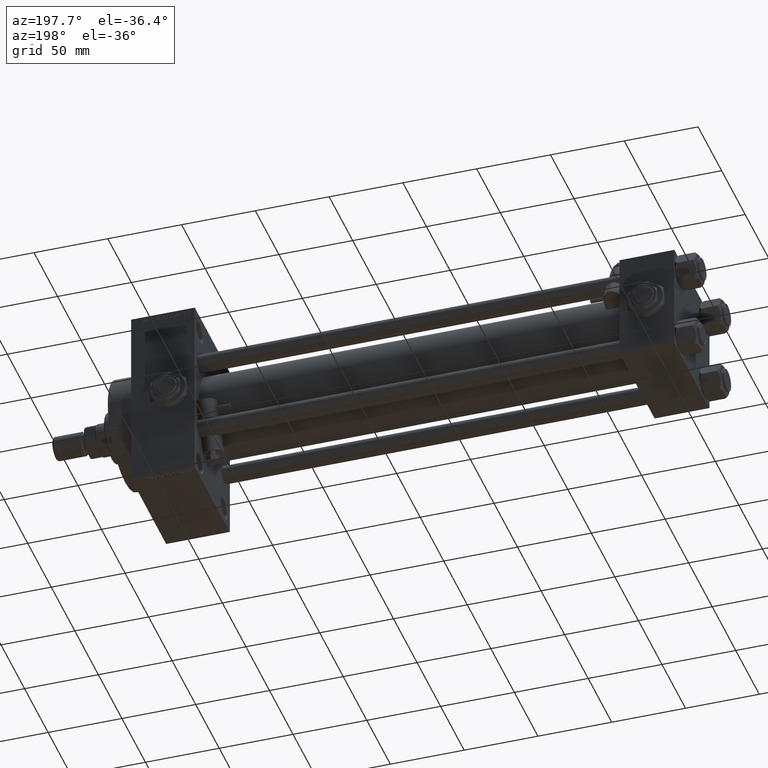
[diagram: clean part render]
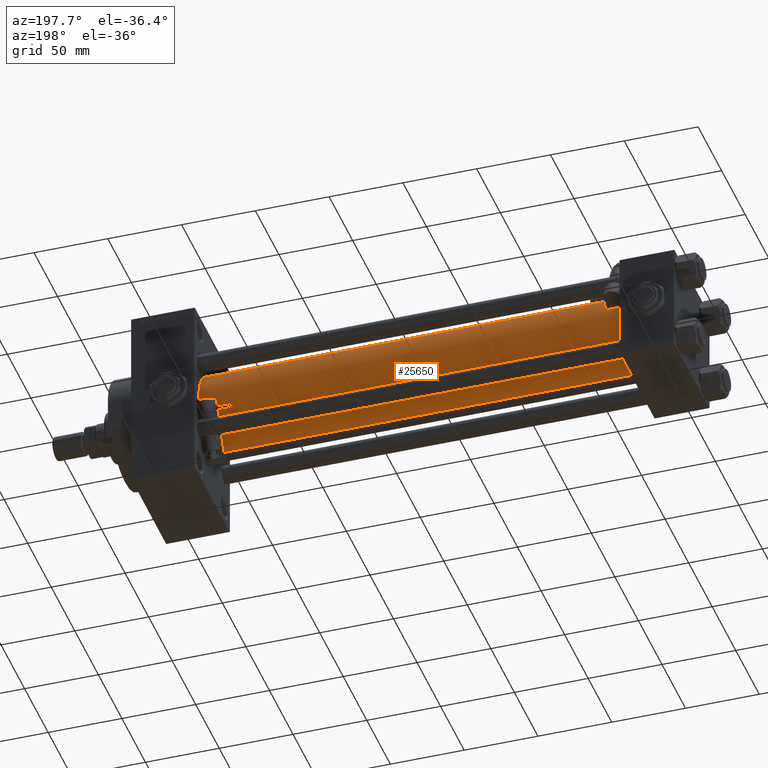
[diagram: same view with one face highlighted and labeled with its STEP entity id]
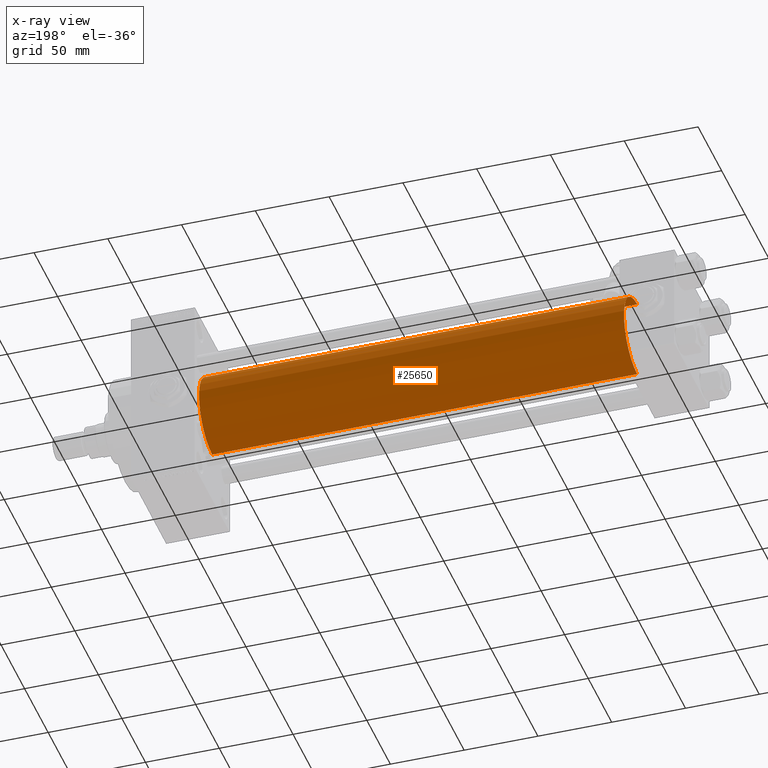
[diagram: x-ray of the same camera — body ghosted, the highlighted face saturated]
A machine part, auxiliary view. The second image highlights one B-rep face of the part: STEP entity #25650.
The next image is the same camera in x-ray: the body ghosted, the highlighted face saturated — about 0% of this face is hidden behind the body in this view.
In plain terms, the highlighted cylindrical surface (partial cylindrical patch) has radius 28 mm, axis along (-1, -0, -0).
Its self-contained STEP definition (entity closure, byte-faithful):
#4 = EDGE_CURVE ( 'NONE', #9647, #4015, #48741, .T. ) ;
#4015 = VERTEX_POINT ( 'NONE', #47421 ) ;
#6304 = CIRCLE ( 'NONE', #23622, 28.00000000000000000 ) ;
#9227 = CARTESIAN_POINT ( 'NONE',  ( 324.9999999999999432, -2.602085213965210642E-15, 0.000000000000000000 ) ) ;
#9534 = DIRECTION ( 'NONE',  ( -1.000000000000000000, -0.000000000000000000, -0.000000000000000000 ) ) ;
#9647 = VERTEX_POINT ( 'NONE', #33389 ) ;
#9899 = CARTESIAN_POINT ( 'NONE',  ( 324.9999999999999432, -2.602085213965210642E-15, 28.00000000000000000 ) ) ;
#11671 = ORIENTED_EDGE ( 'NONE', *, *, #32520, .F. ) ;
#11861 = VERTEX_POINT ( 'NONE', #15962 ) ;
#13415 = CARTESIAN_POINT ( 'NONE',  ( 324.9999999999999432, 8.269258236473784371E-16, -28.00000000000000000 ) ) ;
#13605 = FACE_OUTER_BOUND ( 'NONE', #35080, .T. ) ;
#15108 = VECTOR ( 'NONE', #45276, 1000.000000000000000 ) ;
#15962 = CARTESIAN_POINT ( 'NONE',  ( 36.99999999999997868, -2.602085213965210642E-15, 28.00000000000000000 ) ) ;
#18515 = CARTESIAN_POINT ( 'NONE',  ( 324.9999999999999432, -2.602085213965210642E-15, 0.000000000000000000 ) ) ;
#19020 = EDGE_CURVE ( 'NONE', #9647, #39011, #20443, .T. ) ;
#19303 = ORIENTED_EDGE ( 'NONE', *, *, #45955, .T. ) ;
#20443 = CIRCLE ( 'NONE', #50122, 28.00000000000000000 ) ;
#23622 = AXIS2_PLACEMENT_3D ( 'NONE', #33635, #30027, #45747 ) ;
#25650 = ADVANCED_FACE ( 'NONE', ( #13605 ), #29354, .T. ) ;
#29039 = CARTESIAN_POINT ( 'NONE',  ( 324.9999999999999432, -2.602085213965210642E-15, 28.00000000000000000 ) ) ;
#29101 = DIRECTION ( 'NONE',  ( 0.000000000000000000, 0.000000000000000000, 1.000000000000000000 ) ) ;
#29354 = CYLINDRICAL_SURFACE ( 'NONE', #32124, 28.00000000000000000 ) ;
#30027 = DIRECTION ( 'NONE',  ( 1.000000000000000000, -0.000000000000000000, 0.000000000000000000 ) ) ;
#30636 = DIRECTION ( 'NONE',  ( 0.000000000000000000, 0.000000000000000000, -1.000000000000000000 ) ) ;
#32124 = AXIS2_PLACEMENT_3D ( 'NONE', #9227, #37593, #29101 ) ;
#32520 = EDGE_CURVE ( 'NONE', #39011, #11861, #44758, .T. ) ;
#33389 = CARTESIAN_POINT ( 'NONE',  ( 324.9999999999999432, 8.269258236473784371E-16, -28.00000000000000000 ) ) ;
#33635 = CARTESIAN_POINT ( 'NONE',  ( 36.99999999999997868, -2.602085213965210642E-15, 0.000000000000000000 ) ) ;
#35080 = EDGE_LOOP ( 'NONE', ( #44811, #41760, #19303, #11671 ) ) ;
#37593 = DIRECTION ( 'NONE',  ( -1.000000000000000000, -0.000000000000000000, -0.000000000000000000 ) ) ;
#39011 = VERTEX_POINT ( 'NONE', #9899 ) ;
#40230 = VECTOR ( 'NONE', #9534, 1000.000000000000000 ) ;
#41760 = ORIENTED_EDGE ( 'NONE', *, *, #4, .T. ) ;
#44758 = LINE ( 'NONE', #29039, #15108 ) ;
#44811 = ORIENTED_EDGE ( 'NONE', *, *, #19020, .F. ) ;
#45276 = DIRECTION ( 'NONE',  ( -1.000000000000000000, -0.000000000000000000, -0.000000000000000000 ) ) ;
#45747 = DIRECTION ( 'NONE',  ( 0.000000000000000000, 0.000000000000000000, 1.000000000000000000 ) ) ;
#45955 = EDGE_CURVE ( 'NONE', #4015, #11861, #6304, .T. ) ;
#46601 = DIRECTION ( 'NONE',  ( 1.000000000000000000, 0.000000000000000000, 0.000000000000000000 ) ) ;
#47421 = CARTESIAN_POINT ( 'NONE',  ( 36.99999999999997868, 8.269258236473784371E-16, -28.00000000000000000 ) ) ;
#48741 = LINE ( 'NONE', #13415, #40230 ) ;
#50122 = AXIS2_PLACEMENT_3D ( 'NONE', #18515, #46601, #30636 ) ;